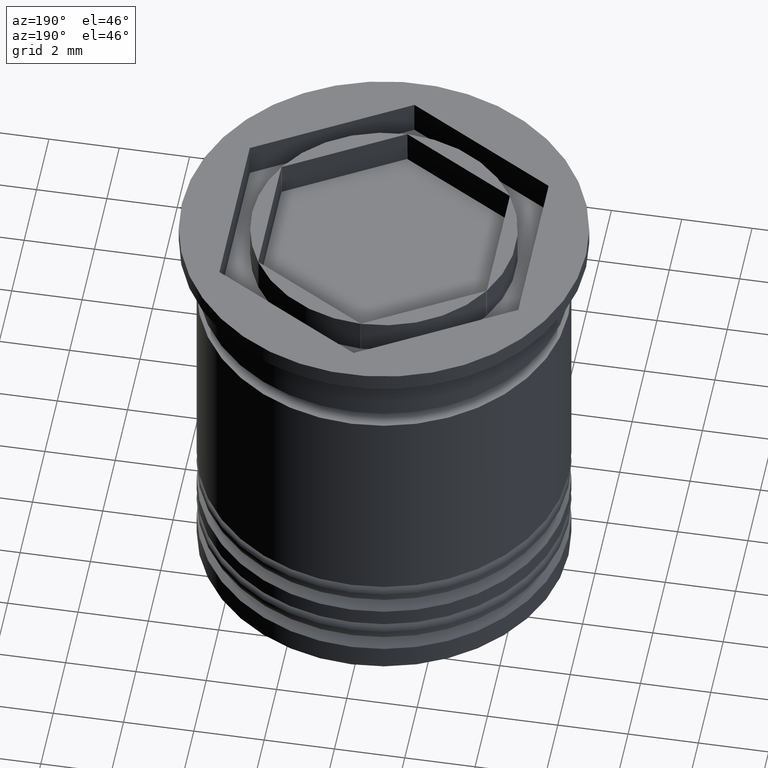
[diagram: clean part render]
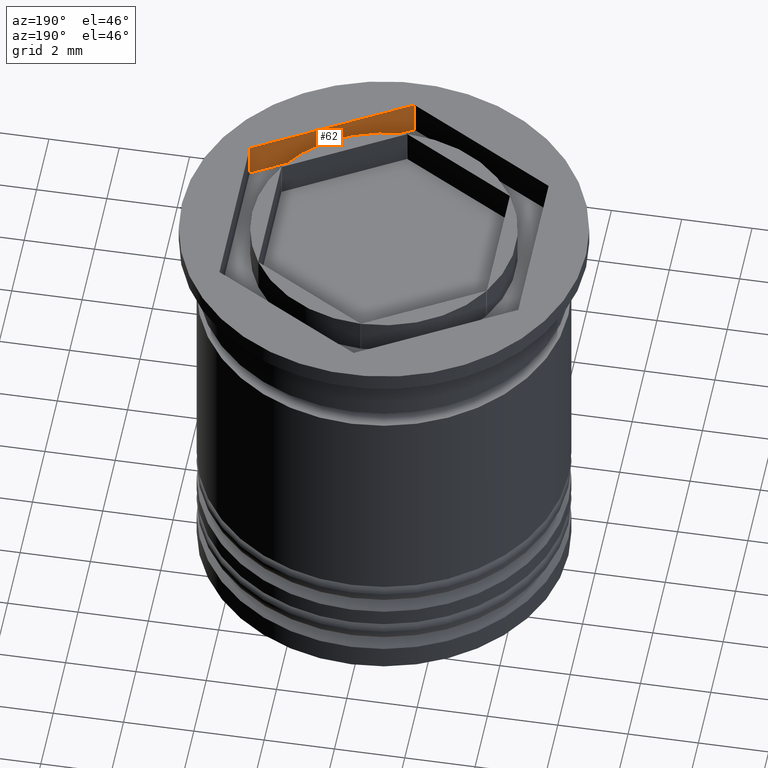
[diagram: same view with one face highlighted and labeled with its STEP entity id]
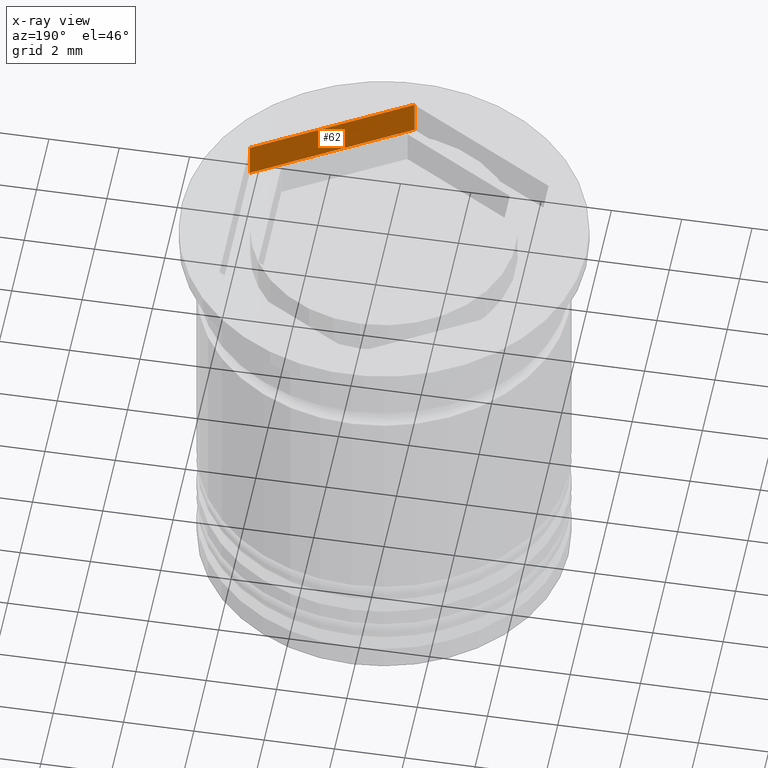
[diagram: x-ray of the same camera — body ghosted, the highlighted face saturated]
A machine part, auxiliary view. The second image highlights one B-rep face of the part: STEP entity #62.
The next image is the same camera in x-ray: the body ghosted, the highlighted face saturated — about 0% of this face is hidden behind the body in this view.
In plain terms, the highlighted planar face has unit normal (0.5, -0.866, 0).
Its self-contained STEP definition (entity closure, byte-faithful):
#7 = EDGE_CURVE ( 'NONE', #1621, #368, #616, .T. ) ;
#62 = ADVANCED_FACE ( 'NONE', ( #183 ), #345, .F. ) ;
#66 = ORIENTED_EDGE ( 'NONE', *, *, #1142, .T. ) ;
#183 = FACE_OUTER_BOUND ( 'NONE', #232, .T. ) ;
#232 = EDGE_LOOP ( 'NONE', ( #261, #240, #815, #66 ) ) ;
#240 = ORIENTED_EDGE ( 'NONE', *, *, #1500, .F. ) ;
#247 = VECTOR ( 'NONE', #1861, 1000.000000000000000 ) ;
#251 = CARTESIAN_POINT ( 'NONE',  ( 4.250000000000000000, -2.453738644055909024, -1.000000000000000000 ) ) ;
#261 = ORIENTED_EDGE ( 'NONE', *, *, #1814, .T. ) ;
#345 = PLANE ( 'NONE',  #705 ) ;
#368 = VERTEX_POINT ( 'NONE', #251 ) ;
#428 = DIRECTION ( 'NONE',  ( 0.8660254037844387076, 0.4999999999999998890, 0.000000000000000000 ) ) ;
#593 = CARTESIAN_POINT ( 'NONE',  ( 2.124999999999998668, -3.680607966083863758, 0.000000000000000000 ) ) ;
#605 = CARTESIAN_POINT ( 'NONE',  ( 0.000000000000000000, -4.907477288111818048, -1.000000000000000000 ) ) ;
#616 = LINE ( 'NONE', #1675, #1056 ) ;
#642 = DIRECTION ( 'NONE',  ( 0.4999999999999998335, -0.8660254037844387076, 0.000000000000000000 ) ) ;
#670 = CARTESIAN_POINT ( 'NONE',  ( 4.250000000000000000, -2.453738644055909024, 0.000000000000000000 ) ) ;
#705 = AXIS2_PLACEMENT_3D ( 'NONE', #807, #642, #1409 ) ;
#738 = VERTEX_POINT ( 'NONE', #670 ) ;
#752 = DIRECTION ( 'NONE',  ( -0.000000000000000000, -0.000000000000000000, 1.000000000000000000 ) ) ;
#785 = VERTEX_POINT ( 'NONE', #1513 ) ;
#807 = CARTESIAN_POINT ( 'NONE',  ( 2.124999999999998668, -3.680607966083863758, -1.000000000000000000 ) ) ;
#815 = ORIENTED_EDGE ( 'NONE', *, *, #7, .F. ) ;
#1046 = DIRECTION ( 'NONE',  ( 0.8660254037844387076, 0.4999999999999998890, 0.000000000000000000 ) ) ;
#1056 = VECTOR ( 'NONE', #1046, 1000.000000000000114 ) ;
#1142 = EDGE_CURVE ( 'NONE', #1621, #785, #1830, .T. ) ;
#1227 = CARTESIAN_POINT ( 'NONE',  ( 4.250000000000000000, -2.453738644055909024, -1.000000000000000000 ) ) ;
#1230 = CARTESIAN_POINT ( 'NONE',  ( 0.000000000000000000, -4.907477288111818048, -1.000000000000000000 ) ) ;
#1342 = LINE ( 'NONE', #593, #1401 ) ;
#1401 = VECTOR ( 'NONE', #428, 1000.000000000000114 ) ;
#1409 = DIRECTION ( 'NONE',  ( 0.8660254037844387076, 0.4999999999999998335, 0.000000000000000000 ) ) ;
#1500 = EDGE_CURVE ( 'NONE', #368, #738, #1672, .T. ) ;
#1513 = CARTESIAN_POINT ( 'NONE',  ( 0.000000000000000000, -4.907477288111818048, 0.000000000000000000 ) ) ;
#1621 = VERTEX_POINT ( 'NONE', #1230 ) ;
#1672 = LINE ( 'NONE', #1227, #247 ) ;
#1675 = CARTESIAN_POINT ( 'NONE',  ( 2.124999999999998668, -3.680607966083863758, -1.000000000000000000 ) ) ;
#1720 = VECTOR ( 'NONE', #752, 1000.000000000000000 ) ;
#1814 = EDGE_CURVE ( 'NONE', #785, #738, #1342, .T. ) ;
#1830 = LINE ( 'NONE', #605, #1720 ) ;
#1861 = DIRECTION ( 'NONE',  ( -0.000000000000000000, -0.000000000000000000, 1.000000000000000000 ) ) ;